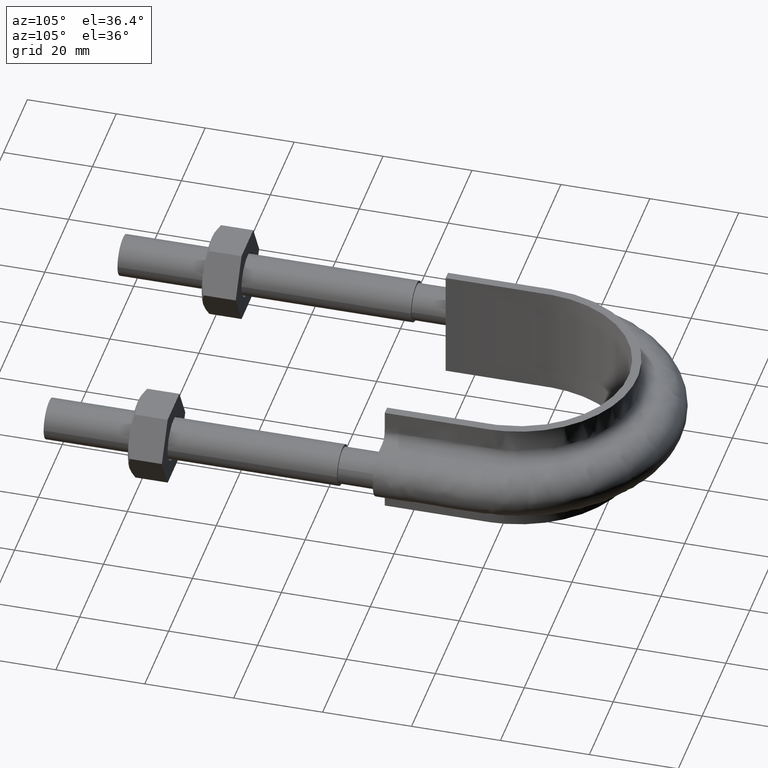
[diagram: clean part render]
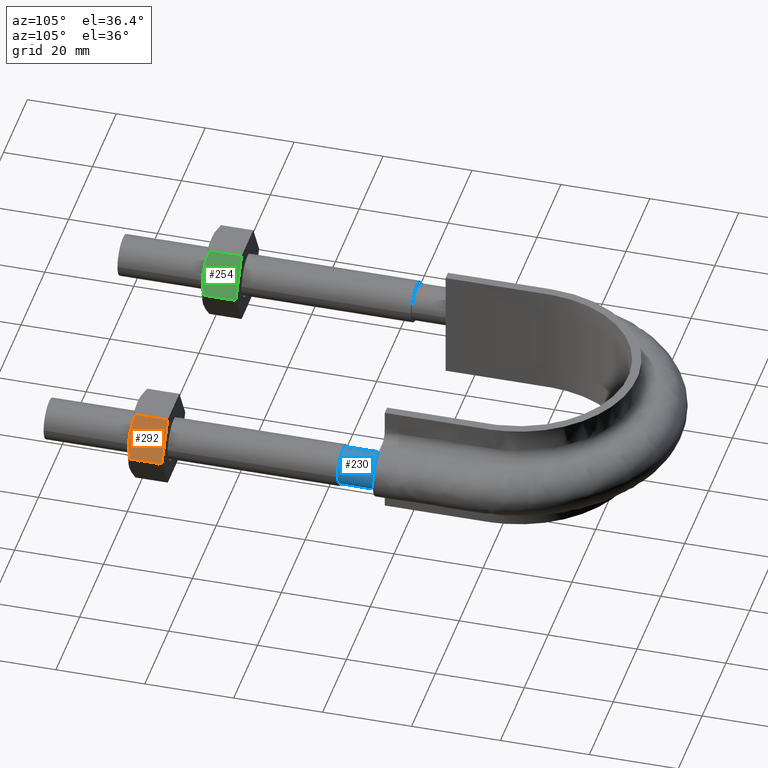
[diagram: same view with three faces highlighted in distinct colors, each labeled with its STEP entity id]
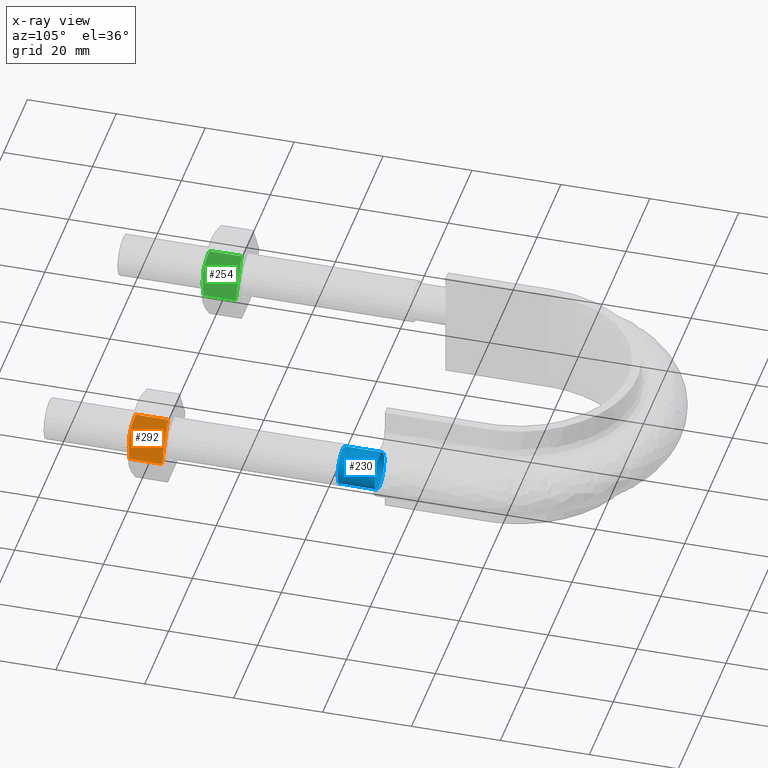
[diagram: x-ray of the same camera — body ghosted, the three highlighted faces saturated]
A machine part, auxiliary view with three faces highlighted in distinct colors.
The next image is the same camera in x-ray (body ghosted, the three faces saturated) — at least one of them is partly hidden behind the body in this view.
Their STEP definitions:

[orange] entity #292 — the highlighted planar face has unit normal (-0.866, 0, -0.5).
#292 = ADVANCED_FACE( '', ( #462 ), #463, .F. );
#462 = FACE_OUTER_BOUND( '', #1459, .T. );
#463 = PLANE( '', #1460 );
#1459 = EDGE_LOOP( '', ( #1981, #1982, #1983, #1984, #1985 ) );
#1460 = AXIS2_PLACEMENT_3D( '', #1986, #1987, #1988 );
#1981 = ORIENTED_EDGE( '', *, *, #2153, .F. );
#1982 = ORIENTED_EDGE( '', *, *, #2104, .F. );
#1983 = ORIENTED_EDGE( '', *, *, #2154, .F. );
#1984 = ORIENTED_EDGE( '', *, *, #2141, .F. );
#1985 = ORIENTED_EDGE( '', *, *, #2138, .F. );
#1986 = CARTESIAN_POINT( '', ( 35.9074772881118, 28.0000000000000, 8.50000000000001 ) );
#1987 = DIRECTION( '', ( -0.866025403784439, 3.65183836637000E-016, -0.500000000000000 ) );
#1988 = DIRECTION( '', ( -0.500000000000000, -2.02717751827675E-032, 0.866025403784439 ) );
#2104 = EDGE_CURVE( '', #2319, #2322, #2323, .T. );
#2138 = EDGE_CURVE( '', #2379, #2381, #2382, .T. );
#2141 = EDGE_CURVE( '', #2381, #2386, #2387, .T. );
#2153 = EDGE_CURVE( '', #2322, #2379, #2403, .T. );
#2154 = EDGE_CURVE( '', #2386, #2319, #2404, .F. );
#2319 = VERTEX_POINT( '', #2887 );
#2322 = VERTEX_POINT( '', #2890 );
#2323 = B_SPLINE_CURVE_WITH_KNOTS( '', 3, ( #2891, #2892, #2893, #2894, #2895, #2896 ), .UNSPECIFIED., .F., .F., ( 4, 2, 4 ), ( 3.69645178181777E-018, 0.00246745482903608, 0.00493490965807216 ), .UNSPECIFIED. );
#2379 = VERTEX_POINT( '', #3006 );
#2381 = VERTEX_POINT( '', #3008 );
#2382 = LINE( '', #3009, #3010 );
#2386 = VERTEX_POINT( '', #3015 );
#2387 = LINE( '', #3016, #3017 );
#2403 = B_SPLINE_CURVE_WITH_KNOTS( '', 3, ( #3043, #3044, #3045, #3046, #3047, #3048 ), .UNSPECIFIED., .F., .F., ( 4, 2, 4 ), ( 1.04444184020130E-017, 0.00246745482903606, 0.00493490965807211 ), .UNSPECIFIED. );
#2404 = LINE( '', #3049, #3050 );
#2887 = CARTESIAN_POINT( '', ( 40.7999656118192, 20.7505553499465, 0.0259616479013478 ) );
#2890 = CARTESIAN_POINT( '', ( 38.3612159321677, 20.0000000000000, 4.25000000000001 ) );
#2891 = CARTESIAN_POINT( '', ( 40.7999656118192, 20.7505553499465, 0.0259616479013434 ) );
#2892 = CARTESIAN_POINT( '', ( 40.4015017855064, 20.5215585493657, 0.716121240053452 ) );
#2893 = CARTESIAN_POINT( '', ( 39.9999375199992, 20.3328582843706, 1.41165095041600 ) );
#2894 = CARTESIAN_POINT( '', ( 39.1878690560105, 20.0716504305290, 2.81819478926868 ) );
#2895 = CARTESIAN_POINT( '', ( 38.7772989072631, 20.0000000000000, 3.52932314697043 ) );
#2896 = CARTESIAN_POINT( '', ( 38.3612159321677, 20.0000000000000, 4.25000000000002 ) );
#3006 = CARTESIAN_POINT( '', ( 35.9224662525163, 20.7505553499465, 8.47403835209864 ) );
#3008 = CARTESIAN_POINT( '', ( 35.9224662525163, 28.0000000000000, 8.47403835209865 ) );
#3009 = CARTESIAN_POINT( '', ( 35.9224662525163, 28.0000000000000, 8.47403835209865 ) );
#3010 = VECTOR( '', #3258, 1000.00000000000 );
#3015 = CARTESIAN_POINT( '', ( 40.7999656118192, 28.0000000000000, 0.0259616479013512 ) );
#3016 = CARTESIAN_POINT( '', ( 33.4612159321677, 28.0000000000000, 12.7370489570875 ) );
#3017 = VECTOR( '', #3263, 1000.00000000000 );
#3043 = CARTESIAN_POINT( '', ( 38.3612159321677, 20.0000000000000, 4.25000000000002 ) );
#3044 = CARTESIAN_POINT( '', ( 37.9451329570724, 20.0000000000000, 4.97067685302960 ) );
#3045 = CARTESIAN_POINT( '', ( 37.5345628083249, 20.0716504305290, 5.68180521073133 ) );
#3046 = CARTESIAN_POINT( '', ( 36.7224943443363, 20.3328582843706, 7.08834904958399 ) );
#3047 = CARTESIAN_POINT( '', ( 36.3209300788291, 20.5215585493656, 7.78387875994653 ) );
#3048 = CARTESIAN_POINT( '', ( 35.9224662525163, 20.7505553499465, 8.47403835209863 ) );
#3049 = CARTESIAN_POINT( '', ( 40.7999656118192, 28.0000000000000, 0.0259616479013538 ) );
#3050 = VECTOR( '', #3284, 1000.00000000000 );
#3258 = DIRECTION( '', ( 2.44921270764476E-016, 1.00000000000000, 3.06151588455594E-016 ) );
#3263 = DIRECTION( '', ( 0.500000000000000, 1.42674417629266E-016, -0.866025403784439 ) );
#3284 = DIRECTION( '', ( 2.44921270764476E-016, 1.00000000000000, 3.06151588455594E-016 ) );

[blue] entity #230 — the highlighted cylindrical surface (bore or boss wall) has radius 4.1 mm, axis along (0, 1, 0).
#230 = ADVANCED_FACE( '', ( #323, #324 ), #325, .T. );
#323 = FACE_OUTER_BOUND( '', #1320, .T. );
#324 = FACE_OUTER_BOUND( '', #1321, .T. );
#325 = CYLINDRICAL_SURFACE( '', #1322, 4.10000000000000 );
#1320 = EDGE_LOOP( '', ( #1558, #1559, #1560, #1561, #1562, #1563, #1564 ) );
#1321 = EDGE_LOOP( '', ( #1565 ) );
#1322 = AXIS2_PLACEMENT_3D( '', #1566, #1567, #1568 );
#1558 = ORIENTED_EDGE( '', *, *, #2041, .T. );
#1559 = ORIENTED_EDGE( '', *, *, #2025, .T. );
#1560 = ORIENTED_EDGE( '', *, *, #2042, .T. );
#1561 = ORIENTED_EDGE( '', *, *, #2043, .T. );
#1562 = ORIENTED_EDGE( '', *, *, #2044, .T. );
#1563 = ORIENTED_EDGE( '', *, *, #2027, .T. );
#1564 = ORIENTED_EDGE( '', *, *, #2045, .T. );
#1565 = ORIENTED_EDGE( '', *, *, #2046, .T. );
#1566 = CARTESIAN_POINT( '', ( 31.0000000000000, 74.3000000000000, 1.03938464280674E-014 ) );
#1567 = DIRECTION( '', ( 2.44921270764475E-016, 1.00000000000000, 3.06151588455594E-016 ) );
#1568 = DIRECTION( '', ( 1.00000000000000, -2.44921270764475E-016, -3.74915180455534E-032 ) );
#2025 = EDGE_CURVE( '', #2195, #2196, #2197, .T. );
#2027 = EDGE_CURVE( '', #2199, #2200, #2201, .T. );
#2041 = EDGE_CURVE( '', #2212, #2195, #2218, .T. );
#2042 = EDGE_CURVE( '', #2196, #2210, #2219, .T. );
#2043 = EDGE_CURVE( '', #2210, #2215, #2220, .T. );
#2044 = EDGE_CURVE( '', #2215, #2199, #2221, .T. );
#2045 = EDGE_CURVE( '', #2200, #2212, #2222, .T. );
#2046 = EDGE_CURVE( '', #2223, #2223, #2224, .T. );
#2195 = VERTEX_POINT( '', #2643 );
#2196 = VERTEX_POINT( '', #2644 );
#2197 = CIRCLE( '', #2645, 4.10000000000000 );
#2199 = VERTEX_POINT( '', #2650 );
#2200 = VERTEX_POINT( '', #2651 );
#2201 = CIRCLE( '', #2652, 4.10000000000000 );
#2210 = VERTEX_POINT( '', #2685 );
#2212 = VERTEX_POINT( '', #2690 );
#2215 = VERTEX_POINT( '', #2699 );
#2218 = CIRCLE( '', #2708, 4.10000000000000 );
#2219 = CIRCLE( '', #2709, 4.10000000000000 );
#2220 = CIRCLE( '', #2710, 4.10000000000000 );
#2221 = CIRCLE( '', #2711, 4.10000000000000 );
#2222 = CIRCLE( '', #2712, 4.10000000000000 );
#2223 = VERTEX_POINT( '', #2713 );
#2224 = CIRCLE( '', #2714, 4.10000000000000 );
#2643 = CARTESIAN_POINT( '', ( 31.9123358292210, 74.3000000000000, 3.99720443994545 ) );
#2644 = CARTESIAN_POINT( '', ( 28.4436918123792, 74.3000000000000, 3.20550907811889 ) );
#2645 = AXIS2_PLACEMENT_3D( '', #3081, #3082, #3083 );
#2650 = CARTESIAN_POINT( '', ( 31.9123358292214, 74.3000000000000, -3.99720443994537 ) );
#2651 = CARTESIAN_POINT( '', ( 34.6939723583999, 74.3000000000000, -1.77892333038200 ) );
#2652 = AXIS2_PLACEMENT_3D( '', #3084, #3085, #3086 );
#2685 = CARTESIAN_POINT( '', ( 26.9000000000000, 74.3000000000000, -2.58256698510804E-013 ) );
#2690 = CARTESIAN_POINT( '', ( 34.6939723584000, 74.3000000000000, 1.77892333038190 ) );
#2699 = CARTESIAN_POINT( '', ( 28.4436918123817, 74.3000000000000, -3.20550907812088 ) );
#2708 = AXIS2_PLACEMENT_3D( '', #3087, #3088, #3089 );
#2709 = AXIS2_PLACEMENT_3D( '', #3090, #3091, #3092 );
#2710 = AXIS2_PLACEMENT_3D( '', #3093, #3094, #3095 );
#2711 = AXIS2_PLACEMENT_3D( '', #3096, #3097, #3098 );
#2712 = AXIS2_PLACEMENT_3D( '', #3099, #3100, #3101 );
#2713 = CARTESIAN_POINT( '', ( 31.0000000000000, 66.0000000000000, 4.10000000000001 ) );
#2714 = AXIS2_PLACEMENT_3D( '', #3102, #3103, #3104 );
#3081 = CARTESIAN_POINT( '', ( 31.0000000000000, 74.3000000000000, 1.03938464280674E-014 ) );
#3082 = DIRECTION( '', ( -2.44921270764475E-016, -1.00000000000000, -3.06151588455594E-016 ) );
#3083 = DIRECTION( '', ( 1.00000000000000, -2.44921270764475E-016, -3.16197804102265E-032 ) );
#3084 = CARTESIAN_POINT( '', ( 31.0000000000000, 74.3000000000000, 1.03938464280674E-014 ) );
#3085 = DIRECTION( '', ( -2.44921270764475E-016, -1.00000000000000, -3.06151588455594E-016 ) );
#3086 = DIRECTION( '', ( 1.00000000000000, -2.44921270764475E-016, -3.16197804102265E-032 ) );
#3087 = CARTESIAN_POINT( '', ( 31.0000000000000, 74.3000000000000, 1.03938464280674E-014 ) );
#3088 = DIRECTION( '', ( -2.44921270764475E-016, -1.00000000000000, -3.06151588455594E-016 ) );
#3089 = DIRECTION( '', ( 1.00000000000000, -2.44921270764475E-016, -3.16197804102265E-032 ) );
#3090 = CARTESIAN_POINT( '', ( 31.0000000000000, 74.3000000000000, 1.03938464280674E-014 ) );
#3091 = DIRECTION( '', ( -2.44921270764475E-016, -1.00000000000000, -3.06151588455594E-016 ) );
#3092 = DIRECTION( '', ( 1.00000000000000, -2.44921270764475E-016, -3.16197804102265E-032 ) );
#3093 = CARTESIAN_POINT( '', ( 31.0000000000000, 74.3000000000000, 1.03938464280674E-014 ) );
#3094 = DIRECTION( '', ( -2.44921270764475E-016, -1.00000000000000, -3.06151588455594E-016 ) );
#3095 = DIRECTION( '', ( 1.00000000000000, -2.44921270764475E-016, -3.16197804102265E-032 ) );
#3096 = CARTESIAN_POINT( '', ( 31.0000000000000, 74.3000000000000, 1.03938464280674E-014 ) );
#3097 = DIRECTION( '', ( -2.44921270764475E-016, -1.00000000000000, -3.06151588455594E-016 ) );
#3098 = DIRECTION( '', ( 1.00000000000000, -2.44921270764475E-016, -3.16197804102265E-032 ) );
#3099 = CARTESIAN_POINT( '', ( 31.0000000000000, 74.3000000000000, 1.03938464280674E-014 ) );
#3100 = DIRECTION( '', ( -2.44921270764475E-016, -1.00000000000000, -3.06151588455594E-016 ) );
#3101 = DIRECTION( '', ( 1.00000000000000, -2.44921270764475E-016, -3.16197804102265E-032 ) );
#3102 = CARTESIAN_POINT( '', ( 31.0000000000000, 66.0000000000000, 7.85278824388600E-015 ) );
#3103 = DIRECTION( '', ( 2.44921270764475E-016, 1.00000000000000, 3.06151588455594E-016 ) );
#3104 = DIRECTION( '', ( -3.74915180455534E-032, -3.06151588455594E-016, 1.00000000000000 ) );

[green] entity #254 — the highlighted planar face has unit normal (-0.866, 0, -0.5).
#254 = ADVANCED_FACE( '', ( #376 ), #377, .F. );
#376 = FACE_OUTER_BOUND( '', #1373, .T. );
#377 = PLANE( '', #1374 );
#1373 = EDGE_LOOP( '', ( #1693, #1694, #1695, #1696, #1697 ) );
#1374 = AXIS2_PLACEMENT_3D( '', #1698, #1699, #1700 );
#1693 = ORIENTED_EDGE( '', *, *, #2069, .F. );
#1694 = ORIENTED_EDGE( '', *, *, #2052, .F. );
#1695 = ORIENTED_EDGE( '', *, *, #2070, .F. );
#1696 = ORIENTED_EDGE( '', *, *, #2071, .F. );
#1697 = ORIENTED_EDGE( '', *, *, #2072, .F. );
#1698 = CARTESIAN_POINT( '', ( -26.0925227118882, 28.0000000000000, 8.50000000000001 ) );
#1699 = DIRECTION( '', ( -0.866025403784439, 3.65183836637000E-016, -0.500000000000000 ) );
#1700 = DIRECTION( '', ( -0.500000000000000, -2.02717751827675E-032, 0.866025403784439 ) );
#2052 = EDGE_CURVE( '', #2233, #2236, #2237, .T. );
#2069 = EDGE_CURVE( '', #2236, #2267, #2268, .T. );
#2070 = EDGE_CURVE( '', #2269, #2233, #2270, .F. );
#2071 = EDGE_CURVE( '', #2271, #2269, #2272, .T. );
#2072 = EDGE_CURVE( '', #2267, #2271, #2273, .T. );
#2233 = VERTEX_POINT( '', #2723 );
#2236 = VERTEX_POINT( '', #2726 );
#2237 = B_SPLINE_CURVE_WITH_KNOTS( '', 3, ( #2727, #2728, #2729, #2730, #2731, #2732 ), .UNSPECIFIED., .F., .F., ( 4, 2, 4 ), ( 4.98136151481964E-018, 0.00246745482903609, 0.00493490965807217 ), .UNSPECIFIED. );
#2267 = VERTEX_POINT( '', #2788 );
#2268 = B_SPLINE_CURVE_WITH_KNOTS( '', 3, ( #2789, #2790, #2791, #2792, #2793, #2794 ), .UNSPECIFIED., .F., .F., ( 4, 2, 4 ), ( 0.000000000000000, 0.00246745482903606, 0.00493490965807213 ), .UNSPECIFIED. );
#2269 = VERTEX_POINT( '', #2795 );
#2270 = LINE( '', #2796, #2797 );
#2271 = VERTEX_POINT( '', #2798 );
#2272 = LINE( '', #2799, #2800 );
#2273 = LINE( '', #2801, #2802 );
#2723 = CARTESIAN_POINT( '', ( -21.2000343881808, 20.7505553499465, 0.0259616479013457 ) );
#2726 = CARTESIAN_POINT( '', ( -23.6387840678323, 20.0000000000000, 4.25000000000002 ) );
#2727 = CARTESIAN_POINT( '', ( -21.2000343881808, 20.7505553499465, 0.0259616479013434 ) );
#2728 = CARTESIAN_POINT( '', ( -21.5984982144937, 20.5215585493657, 0.716121240053453 ) );
#2729 = CARTESIAN_POINT( '', ( -22.0000624800009, 20.3328582843706, 1.41165095041601 ) );
#2730 = CARTESIAN_POINT( '', ( -22.8121309439895, 20.0716504305290, 2.81819478926869 ) );
#2731 = CARTESIAN_POINT( '', ( -23.2227010927369, 20.0000000000000, 3.52932314697043 ) );
#2732 = CARTESIAN_POINT( '', ( -23.6387840678323, 20.0000000000000, 4.25000000000001 ) );
#2788 = CARTESIAN_POINT( '', ( -26.0775337474837, 20.7505553499465, 8.47403835209865 ) );
#2789 = CARTESIAN_POINT( '', ( -23.6387840678323, 20.0000000000000, 4.25000000000001 ) );
#2790 = CARTESIAN_POINT( '', ( -24.0548670429277, 20.0000000000000, 4.97067685302959 ) );
#2791 = CARTESIAN_POINT( '', ( -24.4654371916751, 20.0716504305290, 5.68180521073133 ) );
#2792 = CARTESIAN_POINT( '', ( -25.2775056556637, 20.3328582843706, 7.08834904958400 ) );
#2793 = CARTESIAN_POINT( '', ( -25.6790699211709, 20.5215585493656, 7.78387875994652 ) );
#2794 = CARTESIAN_POINT( '', ( -26.0775337474837, 20.7505553499465, 8.47403835209863 ) );
#2795 = CARTESIAN_POINT( '', ( -21.2000343881808, 28.0000000000000, 0.0259616479013501 ) );
#2796 = CARTESIAN_POINT( '', ( -21.2000343881808, 28.0000000000000, 0.0259616479013495 ) );
#2797 = VECTOR( '', #3144, 1000.00000000000 );
#2798 = CARTESIAN_POINT( '', ( -26.0775337474837, 28.0000000000000, 8.47403835209865 ) );
#2799 = CARTESIAN_POINT( '', ( -28.5387840678323, 28.0000000000000, 12.7370489570875 ) );
#2800 = VECTOR( '', #3145, 1000.00000000000 );
#2801 = CARTESIAN_POINT( '', ( -26.0775337474837, 28.0000000000000, 8.47403835209865 ) );
#2802 = VECTOR( '', #3146, 1000.00000000000 );
#3144 = DIRECTION( '', ( 2.44921270764476E-016, 1.00000000000000, 3.06151588455594E-016 ) );
#3145 = DIRECTION( '', ( 0.500000000000000, 1.42674417629266E-016, -0.866025403784439 ) );
#3146 = DIRECTION( '', ( 2.44921270764476E-016, 1.00000000000000, 3.06151588455594E-016 ) );